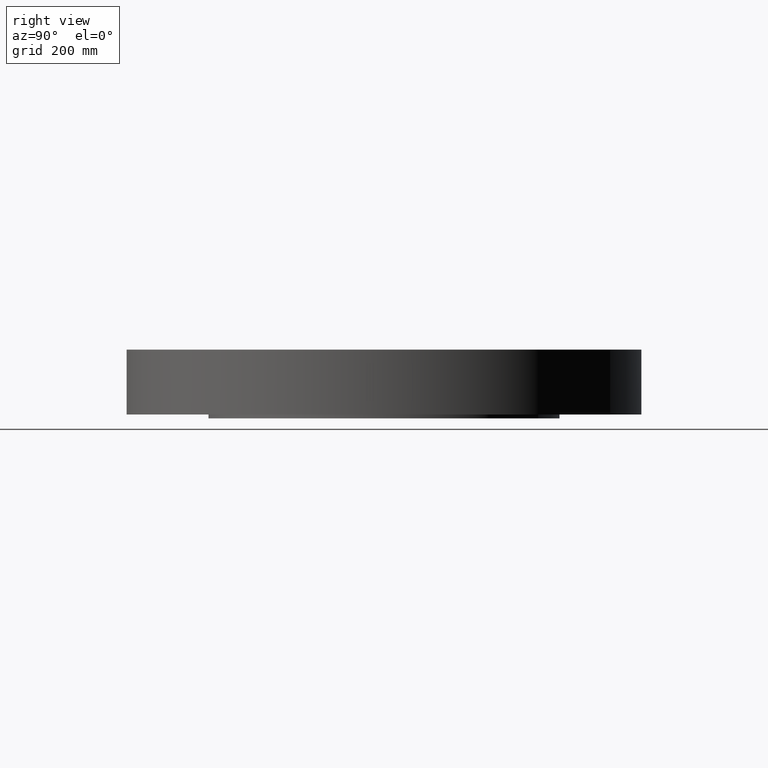
[diagram: clean part render]
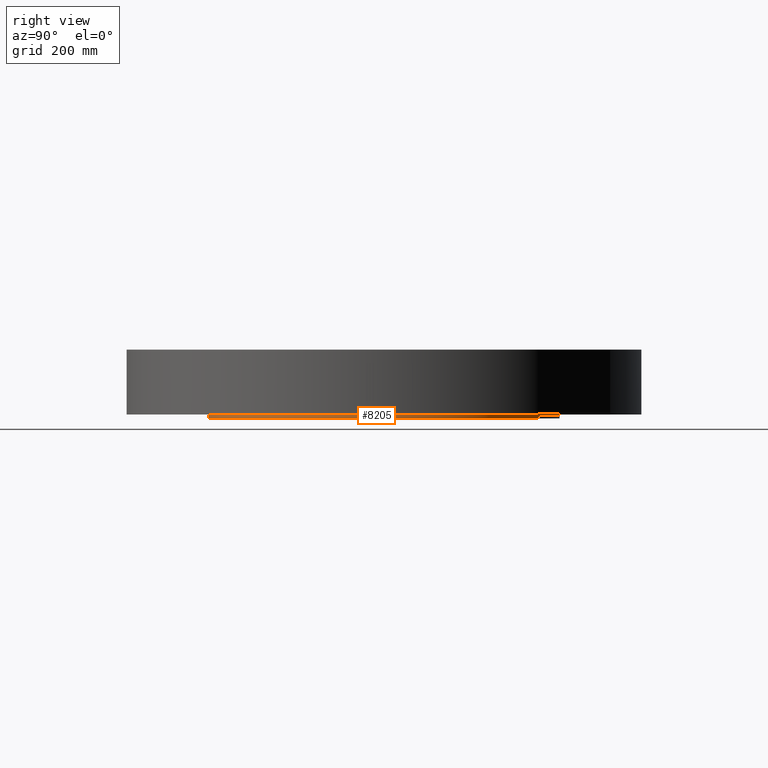
[diagram: same view with one face highlighted and labeled with its STEP entity id]
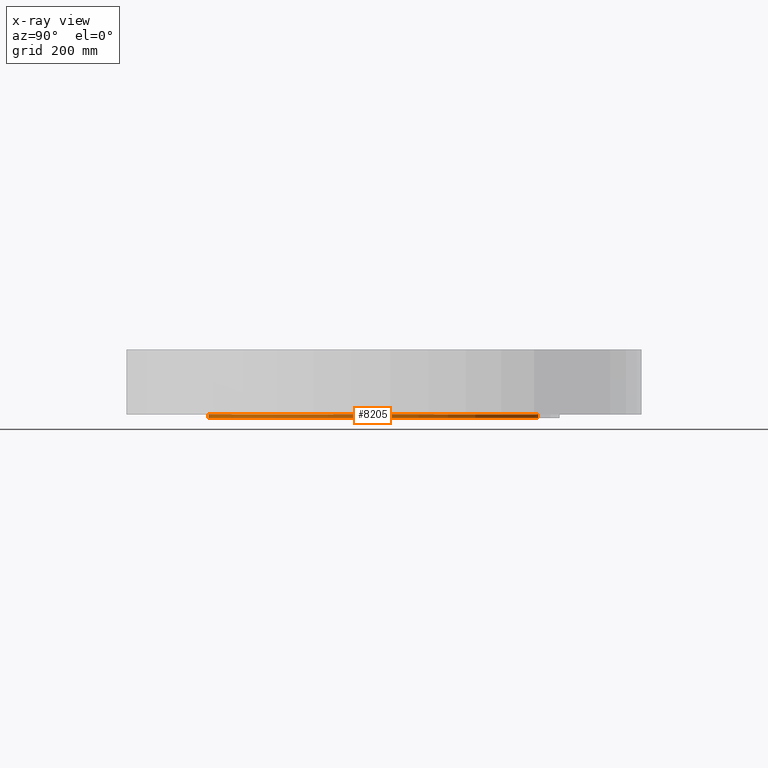
[diagram: x-ray of the same camera — body ghosted, the highlighted face saturated]
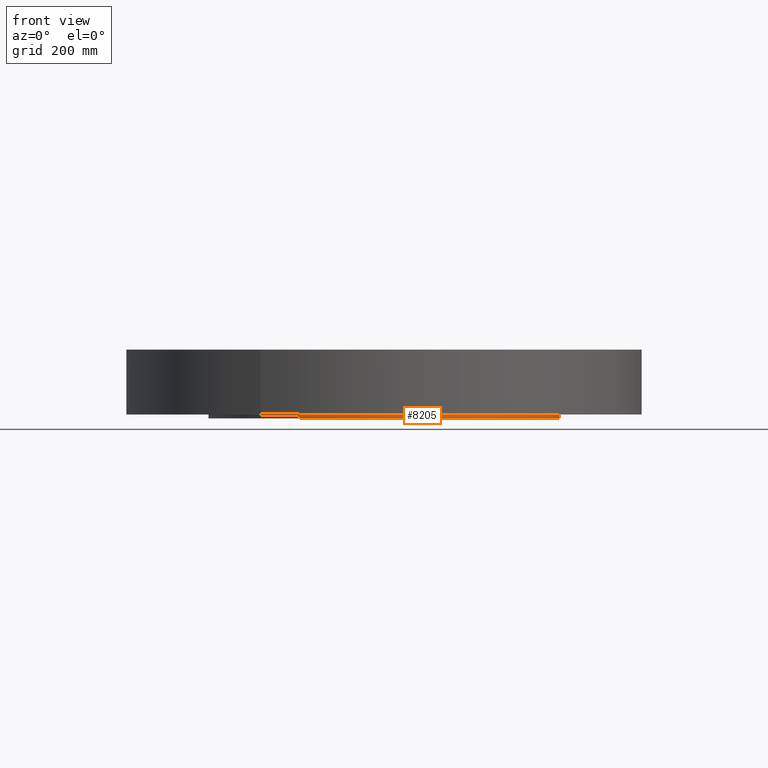
[diagram: same view with one face highlighted and labeled with its STEP entity id]
A machine part, right view. The second image highlights one B-rep face of the part: STEP entity #8205.
The next image is the same camera in x-ray: the body ghosted, the highlighted face saturated — about 0% of this face is hidden behind the body in this view.
A second angle (front view) of the same face is appended — the face is thin or edge-on in the first view.
In plain terms, the highlighted cylindrical surface (partial cylindrical patch) has radius 292.1 mm, axis along (0, 0, -1).
Its self-contained STEP definition (entity closure, byte-faithful):
#7203=AXIS2_PLACEMENT_3D('Circle Axis2P3D',#7201,#7202,$) ;
#8178=AXIS2_PLACEMENT_3D('Cylinder Axis2P3D',#8175,#8176,#8177) ;
#8182=AXIS2_PLACEMENT_3D('Circle Axis2P3D',#8180,#8181,$) ;
#7201=CARTESIAN_POINT('Axis2P3D Location',(0.,0.,0.)) ;
#7205=CARTESIAN_POINT('Vertex',(5.51339369397,10.0921994618,-3.44081718498E-014)) ;
#7207=CARTESIAN_POINT('Vertex',(-5.51339369397,-10.0921994618,-3.44081718498E-014)) ;
#8175=CARTESIAN_POINT('Axis2P3D Location',(0.,0.,2.00000000001)) ;
#8180=CARTESIAN_POINT('Axis2P3D Location',(0.,0.,-0.250000000001)) ;
#8184=CARTESIAN_POINT('Vertex',(5.51339369397,10.0921994618,-0.250000000001)) ;
#8186=CARTESIAN_POINT('Vertex',(-5.51339369397,-10.0921994618,-0.250000000001)) ;
#8189=CARTESIAN_POINT('Line Origine',(5.51339369397,10.0921994618,-0.125000000001)) ;
#8194=CARTESIAN_POINT('Line Origine',(-5.51339369397,-10.0921994618,-0.125000000001)) ;
#7202=DIRECTION('Axis2P3D Direction',(0.,0.,-0.0393700787402)) ;
#8176=DIRECTION('Axis2P3D Direction',(0.,0.,-0.0393700787402)) ;
#8177=DIRECTION('Axis2P3D XDirection',(-0.0188750212049,-0.0345504945626,0.)) ;
#8181=DIRECTION('Axis2P3D Direction',(0.,0.,-0.0393700787402)) ;
#8190=DIRECTION('Vector Direction',(0.,0.,-0.0393700787402)) ;
#8195=DIRECTION('Vector Direction',(0.,0.,-0.0393700787402)) ;
#8191=VECTOR('Line Direction',#8190,0.0393700787402) ;
#8196=VECTOR('Line Direction',#8195,0.0393700787402) ;
#8200=ORIENTED_EDGE('',*,*,#8188,.F.) ;
#8201=ORIENTED_EDGE('',*,*,#8193,.T.) ;
#8202=ORIENTED_EDGE('',*,*,#7209,.T.) ;
#8203=ORIENTED_EDGE('',*,*,#8198,.F.) ;
#8205=ADVANCED_FACE('PartBody',(#8204),#8179,.T.) ;
#7204=CIRCLE('generated circle',#7203,11.5) ;
#8183=CIRCLE('generated circle',#8182,11.5) ;
#8179=CYLINDRICAL_SURFACE('generated cylinder',#8178,11.5) ;
#7209=EDGE_CURVE('',#7206,#7208,#7204,.T.) ;
#8188=EDGE_CURVE('',#8185,#8187,#8183,.T.) ;
#8193=EDGE_CURVE('',#8185,#7206,#8192,.F.) ;
#8198=EDGE_CURVE('',#8187,#7208,#8197,.F.) ;
#8199=EDGE_LOOP('',(#8200,#8201,#8202,#8203)) ;
#8204=FACE_OUTER_BOUND('',#8199,.T.) ;
#8192=LINE('Line',#8189,#8191) ;
#8197=LINE('Line',#8194,#8196) ;
#7206=VERTEX_POINT('',#7205) ;
#7208=VERTEX_POINT('',#7207) ;
#8185=VERTEX_POINT('',#8184) ;
#8187=VERTEX_POINT('',#8186) ;